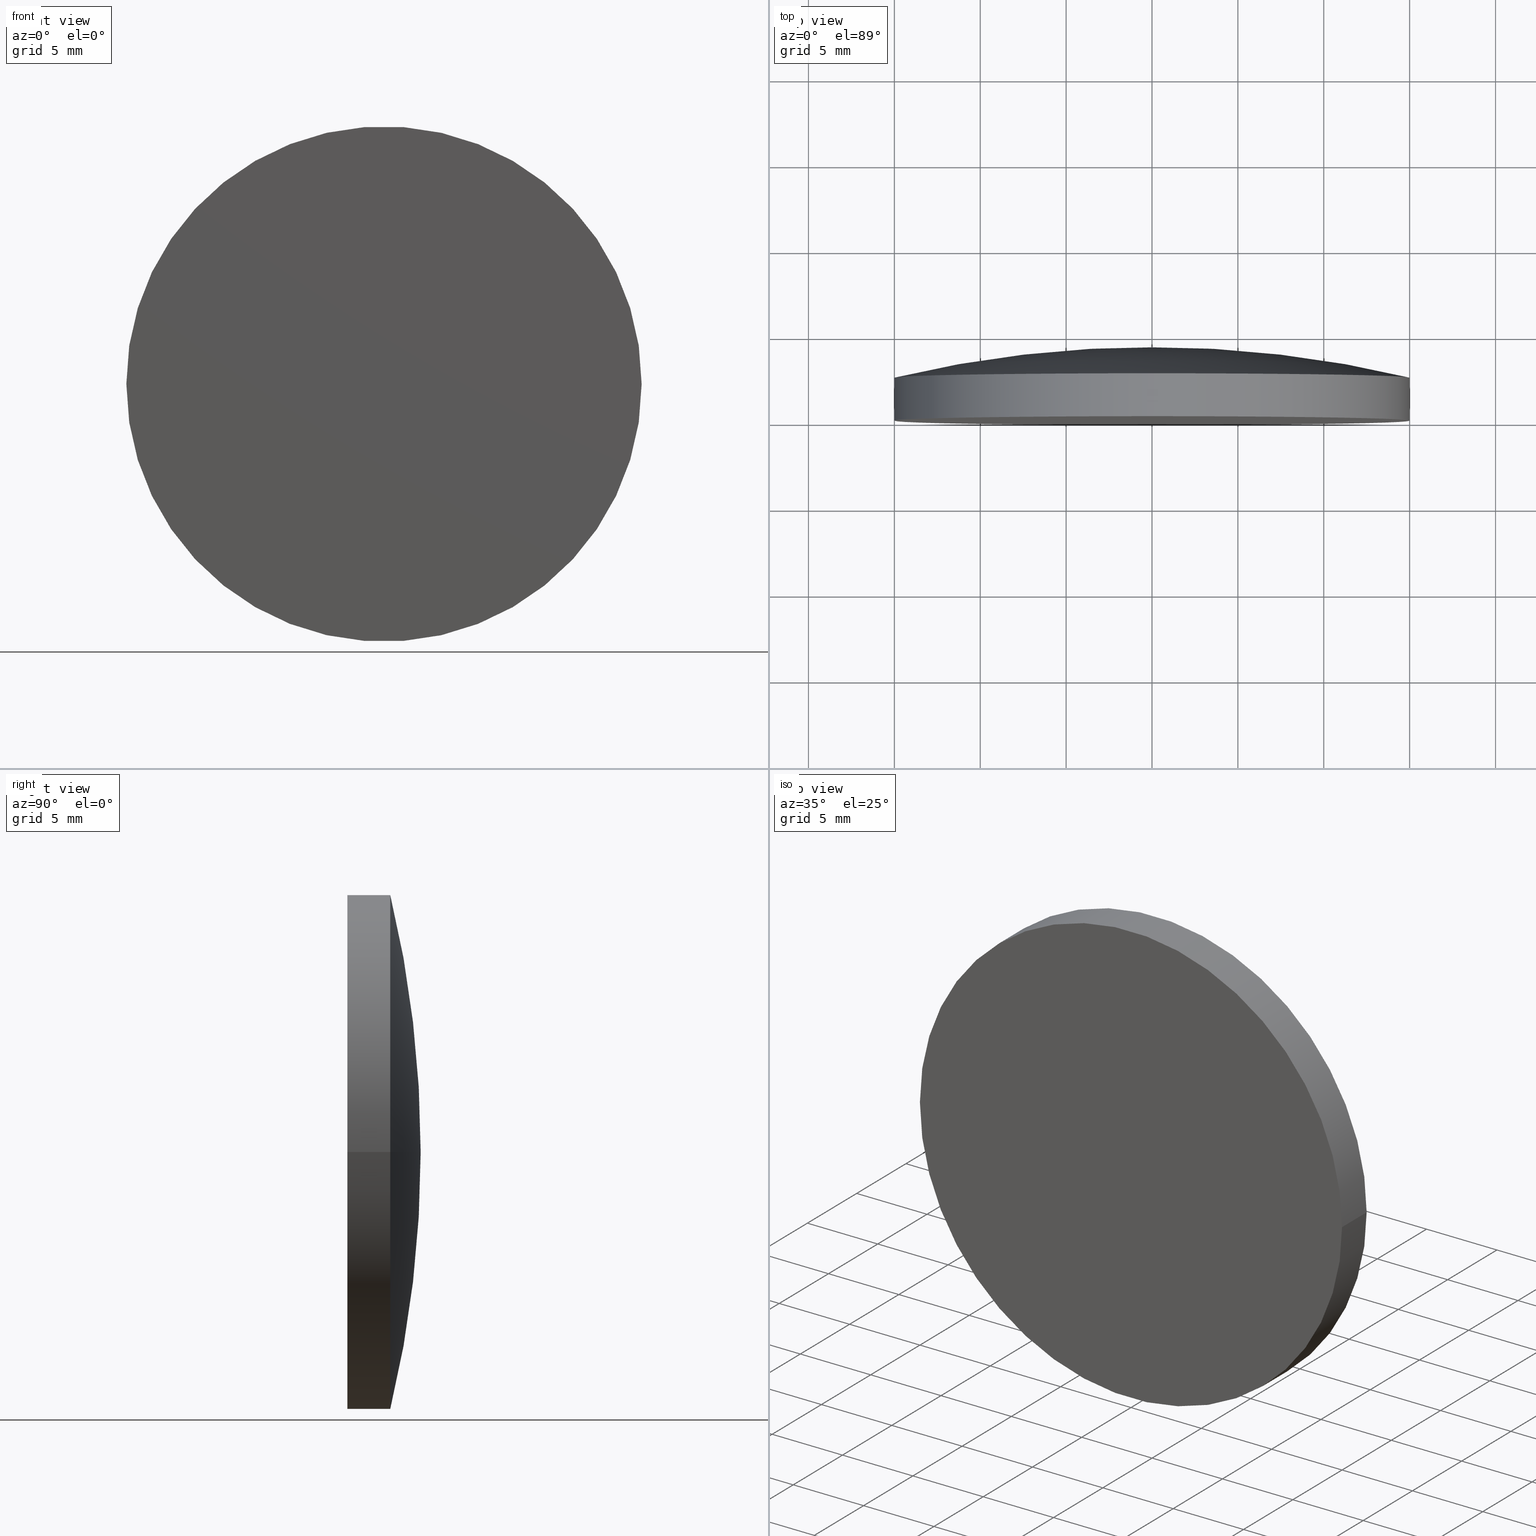
[diagram: canonical four-view strip — front | top / right | iso, engineering-drawing reading convention]
A machine part, canonical four-view strip (front | top / right | iso — engineering-drawing reading convention). The complete STEP part file that produces these views, byte-faithful:
ISO-10303-21;
HEADER;
FILE_DESCRIPTION (( 'STEP AP203' ),
    '1' );
FILE_NAME ('100576.STEP',
    '2024-05-09T08:57:19',
    ( '' ),
    ( '' ),
    'SwSTEP 2.0',
    'SolidWorks 2020',
    '' );
FILE_SCHEMA (( 'CONFIG_CONTROL_DESIGN' ));
ENDSEC;

DATA;
#1 = LOCAL_TIME ( 16, 57, 19.00000000000000000, #195 ) ;
#2 = EDGE_LOOP ( 'NONE', ( #103, #77, #187, #104 ) ) ;
#3 = ORIENTED_EDGE ( 'NONE', *, *, #89, .F. ) ;
#4 = EDGE_LOOP ( 'NONE', ( #48, #123, #136 ) ) ;
#5 = CARTESIAN_POINT ( 'NONE',  ( 0.01246985787228902659, -60.27999879552782403, 0.000000000000000000 ) ) ;
#6 = FACE_OUTER_BOUND ( 'NONE', #134, .T. ) ;
#7 = AXIS2_PLACEMENT_3D ( 'NONE', #143, #127, #109 ) ;
#8 = DIRECTION ( 'NONE',  ( 1.319291633741883713E-17, 1.000000000000000000, -0.000000000000000000 ) ) ;
#9 = PLANE ( 'NONE',  #120 ) ;
#10 = TOROIDAL_SURFACE ( 'NONE', #130, -0.01246985787228982283, 64.54999999999999716 ) ;
#11 = PERSON_AND_ORGANIZATION ( #74, #185 ) ;
#12 = CIRCLE ( 'NONE', #31, 15.00000000000000355 ) ;
#13 = DATE_TIME_ROLE ( 'creation_date' ) ;
#14 = APPROVAL_PERSON_ORGANIZATION ( #146, #128, #115 ) ;
#15 = DIRECTION ( 'NONE',  ( -1.000000000000000000, 1.319291633741883713E-17, 0.000000000000000000 ) ) ;
#16 = VERTEX_POINT ( 'NONE', #151 ) ;
#17 = DIRECTION ( 'NONE',  ( -1.000000000000000000, 0.000000000000000000, 0.000000000000000000 ) ) ;
#18 = DIRECTION ( 'NONE',  ( 1.319291633741883713E-17, 1.000000000000000000, -0.000000000000000000 ) ) ;
#19 = SECURITY_CLASSIFICATION ( '', '', #71 ) ;
#20 = CYLINDRICAL_SURFACE ( 'NONE', #105, 15.00000000000000178 ) ;
#21 = DIRECTION ( 'NONE',  ( -1.000000000000000000, 1.319291633741883713E-17, 0.000000000000000000 ) ) ;
#22 = CARTESIAN_POINT ( 'NONE',  ( 15.00000000000000178, 4.269999999999999574, 1.836970198721029983E-15 ) ) ;
#23 = PERSON_AND_ORGANIZATION_ROLE ( 'design_supplier' ) ;
#24 = PERSON_AND_ORGANIZATION ( #74, #185 ) ;
#25 = APPROVAL_DATE_TIME ( #164, #73 ) ;
#26 = AXIS2_PLACEMENT_3D ( 'NONE', #94, #159, #173 ) ;
#27 = CC_DESIGN_PERSON_AND_ORGANIZATION_ASSIGNMENT ( #131, #129, ( #19 ) ) ;
#28 = ORIENTED_EDGE ( 'NONE', *, *, #124, .T. ) ;
#29 = CLOSED_SHELL ( 'NONE', ( #44, #198, #111, #93, #67 ) ) ;
#30 = DIRECTION ( 'NONE',  ( 1.319291633741883713E-17, 1.000000000000000000, -0.000000000000000000 ) ) ;
#31 = AXIS2_PLACEMENT_3D ( 'NONE', #78, #18, #137 ) ;
#32 = CARTESIAN_POINT ( 'NONE',  ( -2.407412430484044816E-32, -1.734723475976807094E-15, 0.000000000000000000 ) ) ;
#33 = APPLICATION_CONTEXT ( 'configuration controlled 3d designs of mechanical parts and assemblies' ) ;
#34 = LINE ( 'NONE', #177, #133 ) ;
#35 = CC_DESIGN_DATE_AND_TIME_ASSIGNMENT ( #40, #13, ( #140 ) ) ;
#36 = CC_DESIGN_APPROVAL ( #189, ( #19 ) ) ;
#37 = DIRECTION ( 'NONE',  ( 1.319291633741883713E-17, 1.000000000000000000, -0.000000000000000000 ) ) ;
#38 = CYLINDRICAL_SURFACE ( 'NONE', #26, 15.00000000000000178 ) ;
#39 = PERSON_AND_ORGANIZATION_ROLE ( 'design_owner' ) ;
#40 = DATE_AND_TIME ( #60, #168 ) ;
#41 = AXIS2_PLACEMENT_3D ( 'NONE', #32, #37, #163 ) ;
#42 = APPROVAL_STATUS ( 'not_yet_approved' ) ;
#43 = PERSON_AND_ORGANIZATION_ROLE ( 'creator' ) ;
#44 = ADVANCED_FACE ( 'NONE', ( #190 ), #10, .T. ) ;
#45 = CALENDAR_DATE ( 2024, 9, 5 ) ;
#46 = ORIENTED_EDGE ( 'NONE', *, *, #121, .F. ) ;
#47 = AXIS2_PLACEMENT_3D ( 'NONE', #50, #107, #21 ) ;
#48 = ORIENTED_EDGE ( 'NONE', *, *, #158, .F. ) ;
#49 = ORIENTED_EDGE ( 'NONE', *, *, #176, .F. ) ;
#50 = CARTESIAN_POINT ( 'NONE',  ( -7.962109704190423187E-16, -60.27999879552782403, 0.000000000000000000 ) ) ;
#51 = CC_DESIGN_SECURITY_CLASSIFICATION ( #19, ( #61 ) ) ;
#52 =( LENGTH_UNIT ( ) NAMED_UNIT ( * ) SI_UNIT ( .MILLI., .METRE. ) );
#53 = DIRECTION ( 'NONE',  ( 1.319291633741883713E-17, 1.000000000000000000, -0.000000000000000000 ) ) ;
#54 = APPLICATION_PROTOCOL_DEFINITION ( 'international standard', 'config_control_design', 1994, #33 ) ;
#55 = UNCERTAINTY_MEASURE_WITH_UNIT (LENGTH_MEASURE( 1.000000000000000082E-05 ), #52, 'distance_accuracy_value', 'NONE');
#56 = CARTESIAN_POINT ( 'NONE',  ( 15.00000000000000000, -1.932617221038089619E-15, 1.836970198721029983E-15 ) ) ;
#57 = APPROVAL_ROLE ( '' ) ;
#58 = PERSON_AND_ORGANIZATION ( #74, #185 ) ;
#59 = COORDINATED_UNIVERSAL_TIME_OFFSET ( 8, 0, .AHEAD. ) ;
#60 = CALENDAR_DATE ( 2024, 9, 5 ) ;
#61 = PRODUCT_DEFINITION_FORMATION_WITH_SPECIFIED_SOURCE ( '�κ�', '', #170, .NOT_KNOWN. ) ;
#62 = EDGE_CURVE ( 'NONE', #63, #16, #178, .T. ) ;
#63 = VERTEX_POINT ( 'NONE', #112 ) ;
#64 = VERTEX_POINT ( 'NONE', #108 ) ;
#65 = EDGE_LOOP ( 'NONE', ( #46, #88 ) ) ;
#66 = CARTESIAN_POINT ( 'NONE',  ( 5.633375276077843094E-17, 4.269999999999999574, 0.000000000000000000 ) ) ;
#67 = ADVANCED_FACE ( 'NONE', ( #175 ), #9, .F. ) ;
#68 = DIRECTION ( 'NONE',  ( 1.319291633741883713E-17, 1.000000000000000000, -0.000000000000000000 ) ) ;
#69 = LOCAL_TIME ( 16, 57, 19.00000000000000000, #167 ) ;
#70 = FACE_OUTER_BOUND ( 'NONE', #4, .T. ) ;
#71 = SECURITY_CLASSIFICATION_LEVEL ( 'unclassified' ) ;
#72 = CIRCLE ( 'NONE', #41, 15.00000000000000000 ) ;
#73 = APPROVAL ( #42, 'δָ��' ) ;
#74 = PERSON ( 'δָ��', 'δָ��', 'δָ��', ('δָ��'), ('δָ��'), ('δָ��') ) ;
#75 = DIRECTION ( 'NONE',  ( -0.000000000000000000, 0.000000000000000000, -1.000000000000000000 ) ) ;
#76 = VERTEX_POINT ( 'NONE', #56 ) ;
#77 = ORIENTED_EDGE ( 'NONE', *, *, #85, .T. ) ;
#78 = CARTESIAN_POINT ( 'NONE',  ( 3.298229084354711824E-17, 2.500000000000002220, 0.000000000000000000 ) ) ;
#79 = LINE ( 'NONE', #22, #139 ) ;
#80 = CARTESIAN_POINT ( 'NONE',  ( 3.298229084354711824E-17, 2.500000000000002220, 0.000000000000000000 ) ) ;
#81 = DIRECTION ( 'NONE',  ( -1.000000000000000000, 1.319291633741883713E-17, 0.000000000000000000 ) ) ;
#82 = APPROVAL_PERSON_ORGANIZATION ( #11, #73, #57 ) ;
#83 = PERSON_AND_ORGANIZATION ( #74, #185 ) ;
#84 = DATE_AND_TIME ( #181, #69 ) ;
#85 = EDGE_CURVE ( 'NONE', #76, #188, #86, .T. ) ;
#86 = CIRCLE ( 'NONE', #171, 15.00000000000000000 ) ;
#87 = MECHANICAL_CONTEXT ( 'NONE', #33, 'mechanical' ) ;
#88 = ORIENTED_EDGE ( 'NONE', *, *, #85, .F. ) ;
#89 = EDGE_CURVE ( 'NONE', #188, #63, #34, .T. ) ;
#90 = CARTESIAN_POINT ( 'NONE',  ( -2.407412430484044816E-32, -1.734723475976807094E-15, 0.000000000000000000 ) ) ;
#91 = DIRECTION ( 'NONE',  ( -1.000000000000000000, 0.000000000000000000, 0.000000000000000000 ) ) ;
#92 = CC_DESIGN_APPROVAL ( #73, ( #61 ) ) ;
#93 = ADVANCED_FACE ( 'NONE', ( #70 ), #126, .T. ) ;
#94 = CARTESIAN_POINT ( 'NONE',  ( 5.633375276077843094E-17, 4.269999999999999574, 0.000000000000000000 ) ) ;
#95 = CALENDAR_DATE ( 2024, 9, 5 ) ;
#96 = LOCAL_TIME ( 16, 57, 19.00000000000000000, #59 ) ;
#97 = APPROVAL_STATUS ( 'not_yet_approved' ) ;
#98 = CC_DESIGN_PERSON_AND_ORGANIZATION_ASSIGNMENT ( #58, #39, ( #170 ) ) ;
#99 = DATE_AND_TIME ( #45, #135 ) ;
#100 = APPROVAL_ROLE ( '' ) ;
#101 = CARTESIAN_POINT ( 'NONE',  ( 0.000000000000000000, 0.000000000000000000, 0.000000000000000000 ) ) ;
#102 = ORIENTED_EDGE ( 'NONE', *, *, #62, .F. ) ;
#103 = ORIENTED_EDGE ( 'NONE', *, *, #124, .F. ) ;
#104 = ORIENTED_EDGE ( 'NONE', *, *, #106, .F. ) ;
#105 = AXIS2_PLACEMENT_3D ( 'NONE', #66, #194, #91 ) ;
#106 = EDGE_CURVE ( 'NONE', #64, #63, #193, .T. ) ;
#107 = DIRECTION ( 'NONE',  ( 1.319291633741883713E-17, 1.000000000000000000, -0.000000000000000000 ) ) ;
#108 = CARTESIAN_POINT ( 'NONE',  ( 15.00000000000000533, 2.500000000000002220, 1.836970198721030378E-15 ) ) ;
#109 = DIRECTION ( 'NONE',  ( 1.000000000000000000, 0.000000000000000000, 1.224646799147352961E-16 ) ) ;
#110 = DIRECTION ( 'NONE',  ( -1.000000000000000000, 1.319291633741884329E-17, 0.000000000000000000 ) ) ;
#111 = ADVANCED_FACE ( 'NONE', ( #138 ), #38, .T. ) ;
#112 = CARTESIAN_POINT ( 'NONE',  ( -15.00000000000000355, 2.500000000000002220, 0.000000000000000000 ) ) ;
#113 = PRODUCT_DEFINITION_SHAPE ( 'NONE', 'NONE',  #140 ) ;
#114 = CALENDAR_DATE ( 2024, 9, 5 ) ;
#115 = APPROVAL_ROLE ( '' ) ;
#116 = APPROVAL_DATE_TIME ( #84, #189 ) ;
#117 = PERSON_AND_ORGANIZATION_ROLE ( 'creator' ) ;
#118 = PERSON_AND_ORGANIZATION ( #74, #185 ) ;
#119 = CC_DESIGN_PERSON_AND_ORGANIZATION_ASSIGNMENT ( #197, #43, ( #140 ) ) ;
#120 = AXIS2_PLACEMENT_3D ( 'NONE', #156, #141, #81 ) ;
#121 = EDGE_CURVE ( 'NONE', #188, #76, #72, .T. ) ;
#122 = APPROVAL_PERSON_ORGANIZATION ( #83, #189, #100 ) ;
#123 = ORIENTED_EDGE ( 'NONE', *, *, #106, .T. ) ;
#124 = EDGE_CURVE ( 'NONE', #76, #64, #79, .T. ) ;
#125 = ORIENTED_EDGE ( 'NONE', *, *, #121, .T. ) ;
#126 = TOROIDAL_SURFACE ( 'NONE', #47, -0.01246985787228982283, 64.54999999999999716 ) ;
#127 = DIRECTION ( 'NONE',  ( -1.224646799147353207E-16, 1.615666276403880151E-33, 1.000000000000000000 ) ) ;
#128 = APPROVAL ( #97, 'δָ��' ) ;
#129 = PERSON_AND_ORGANIZATION_ROLE ( 'classification_officer' ) ;
#130 = AXIS2_PLACEMENT_3D ( 'NONE', #172, #30, #15 ) ;
#131 = PERSON_AND_ORGANIZATION ( #74, #185 ) ;
#132 = PRODUCT_RELATED_PRODUCT_CATEGORY ( 'detail', '', ( #170 ) ) ;
#133 = VECTOR ( 'NONE', #53, 1000.000000000000000 ) ;
#134 = EDGE_LOOP ( 'NONE', ( #125, #28, #49, #3 ) ) ;
#135 = LOCAL_TIME ( 16, 57, 19.00000000000000000, #184 ) ;
#136 = ORIENTED_EDGE ( 'NONE', *, *, #62, .T. ) ;
#137 = DIRECTION ( 'NONE',  ( -1.000000000000000000, 0.000000000000000000, 0.000000000000000000 ) ) ;
#138 = FACE_OUTER_BOUND ( 'NONE', #2, .T. ) ;
#139 = VECTOR ( 'NONE', #192, 1000.000000000000000 ) ;
#140 = PRODUCT_DEFINITION ( 'δ֪', '', #61, #152 ) ;
#141 = DIRECTION ( 'NONE',  ( 1.319291633741883713E-17, 1.000000000000000000, -0.000000000000000000 ) ) ;
#142 =( NAMED_UNIT ( * ) PLANE_ANGLE_UNIT ( ) SI_UNIT ( $, .RADIAN. ) );
#143 = CARTESIAN_POINT ( 'NONE',  ( -0.01246985787229061907, -60.27999879552782403, -1.527117152912215589E-18 ) ) ;
#144 =( GEOMETRIC_REPRESENTATION_CONTEXT ( 3 ) GLOBAL_UNCERTAINTY_ASSIGNED_CONTEXT ( ( #55 ) ) GLOBAL_UNIT_ASSIGNED_CONTEXT ( ( #52, #142, #157 ) ) REPRESENTATION_CONTEXT ( 'NONE', 'WORKASPACE' ) );
#145 = SHAPE_DEFINITION_REPRESENTATION ( #113, #155 ) ;
#146 = PERSON_AND_ORGANIZATION ( #74, #185 ) ;
#147 = COORDINATED_UNIVERSAL_TIME_OFFSET ( 8, 0, .AHEAD. ) ;
#148 = APPROVAL_DATE_TIME ( #169, #128 ) ;
#149 = ORIENTED_EDGE ( 'NONE', *, *, #176, .T. ) ;
#150 = CC_DESIGN_APPROVAL ( #128, ( #140 ) ) ;
#151 = CARTESIAN_POINT ( 'NONE',  ( -1.090978436063538837E-15, 4.269999999999996021, 0.000000000000000000 ) ) ;
#152 = DESIGN_CONTEXT ( 'detailed design', #201, 'design' ) ;
#153 = ORIENTED_EDGE ( 'NONE', *, *, #158, .T. ) ;
#154 = CC_DESIGN_PERSON_AND_ORGANIZATION_ASSIGNMENT ( #24, #117, ( #61 ) ) ;
#155 = ADVANCED_BREP_SHAPE_REPRESENTATION ( '100576', ( #161, #182 ), #144 ) ;
#156 = CARTESIAN_POINT ( 'NONE',  ( -1.342289488417509649E-32, -1.017431971891156057E-15, 0.000000000000000000 ) ) ;
#157 =( NAMED_UNIT ( * ) SI_UNIT ( $, .STERADIAN. ) SOLID_ANGLE_UNIT ( ) );
#158 = EDGE_CURVE ( 'NONE', #64, #16, #199, .T. ) ;
#159 = DIRECTION ( 'NONE',  ( 1.319291633741883713E-17, 1.000000000000000000, -0.000000000000000000 ) ) ;
#160 = AXIS2_PLACEMENT_3D ( 'NONE', #80, #8, #179 ) ;
#161 = MANIFOLD_SOLID_BREP ( '��ת1', #29 ) ;
#162 = CARTESIAN_POINT ( 'NONE',  ( -15.00000000000000000, -1.536829730915524373E-15, 0.000000000000000000 ) ) ;
#163 = DIRECTION ( 'NONE',  ( -1.000000000000000000, 1.319291633741884329E-17, 0.000000000000000000 ) ) ;
#164 = DATE_AND_TIME ( #95, #1 ) ;
#165 = DATE_TIME_ROLE ( 'classification_date' ) ;
#166 = CC_DESIGN_DATE_AND_TIME_ASSIGNMENT ( #99, #165, ( #19 ) ) ;
#167 = COORDINATED_UNIVERSAL_TIME_OFFSET ( 8, 0, .AHEAD. ) ;
#168 = LOCAL_TIME ( 16, 57, 19.00000000000000000, #147 ) ;
#169 = DATE_AND_TIME ( #114, #96 ) ;
#170 = PRODUCT ( '100576', '100576', '', ( #87 ) ) ;
#171 = AXIS2_PLACEMENT_3D ( 'NONE', #90, #68, #110 ) ;
#172 = CARTESIAN_POINT ( 'NONE',  ( -7.962109704190423187E-16, -60.27999879552782403, 0.000000000000000000 ) ) ;
#173 = DIRECTION ( 'NONE',  ( -1.000000000000000000, 0.000000000000000000, 0.000000000000000000 ) ) ;
#174 = AXIS2_PLACEMENT_3D ( 'NONE', #5, #75, #17 ) ;
#175 = FACE_OUTER_BOUND ( 'NONE', #65, .T. ) ;
#176 = EDGE_CURVE ( 'NONE', #63, #64, #12, .T. ) ;
#177 = CARTESIAN_POINT ( 'NONE',  ( -15.00000000000000178, 4.269999999999999574, 0.000000000000000000 ) ) ;
#178 = CIRCLE ( 'NONE', #174, 64.54999999999999716 ) ;
#179 = DIRECTION ( 'NONE',  ( -1.000000000000000000, 0.000000000000000000, 0.000000000000000000 ) ) ;
#180 = DIRECTION ( 'NONE',  ( 0.000000000000000000, 0.000000000000000000, 1.000000000000000000 ) ) ;
#181 = CALENDAR_DATE ( 2024, 9, 5 ) ;
#182 = AXIS2_PLACEMENT_3D ( 'NONE', #101, #180, #200 ) ;
#183 = APPLICATION_PROTOCOL_DEFINITION ( 'international standard', 'config_control_design', 1994, #201 ) ;
#184 = COORDINATED_UNIVERSAL_TIME_OFFSET ( 8, 0, .AHEAD. ) ;
#185 = ORGANIZATION ( 'δָ��', 'δָ��', '' ) ;
#186 = CC_DESIGN_PERSON_AND_ORGANIZATION_ASSIGNMENT ( #118, #23, ( #61 ) ) ;
#187 = ORIENTED_EDGE ( 'NONE', *, *, #89, .T. ) ;
#188 = VERTEX_POINT ( 'NONE', #162 ) ;
#189 = APPROVAL ( #196, 'δָ��' ) ;
#190 = FACE_OUTER_BOUND ( 'NONE', #191, .T. ) ;
#191 = EDGE_LOOP ( 'NONE', ( #149, #153, #102 ) ) ;
#192 = DIRECTION ( 'NONE',  ( 1.319291633741883713E-17, 1.000000000000000000, -0.000000000000000000 ) ) ;
#193 = CIRCLE ( 'NONE', #160, 15.00000000000000355 ) ;
#194 = DIRECTION ( 'NONE',  ( 1.319291633741883713E-17, 1.000000000000000000, -0.000000000000000000 ) ) ;
#195 = COORDINATED_UNIVERSAL_TIME_OFFSET ( 8, 0, .AHEAD. ) ;
#196 = APPROVAL_STATUS ( 'not_yet_approved' ) ;
#197 = PERSON_AND_ORGANIZATION ( #74, #185 ) ;
#198 = ADVANCED_FACE ( 'NONE', ( #6 ), #20, .T. ) ;
#199 = CIRCLE ( 'NONE', #7, 64.54999999999999716 ) ;
#200 = DIRECTION ( 'NONE',  ( 1.000000000000000000, 0.000000000000000000, 0.000000000000000000 ) ) ;
#201 = APPLICATION_CONTEXT ( 'configuration controlled 3d designs of mechanical parts and assemblies' ) ;
ENDSEC;
END-ISO-10303-21;
